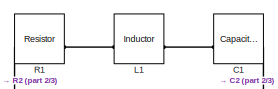
[diagram: root canvas - part 1/3, top center region]
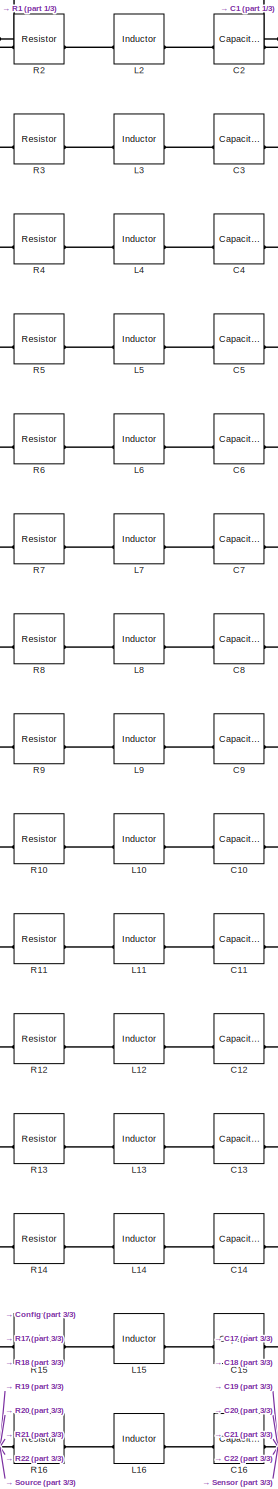
[diagram: root canvas - part 2/3, central region]
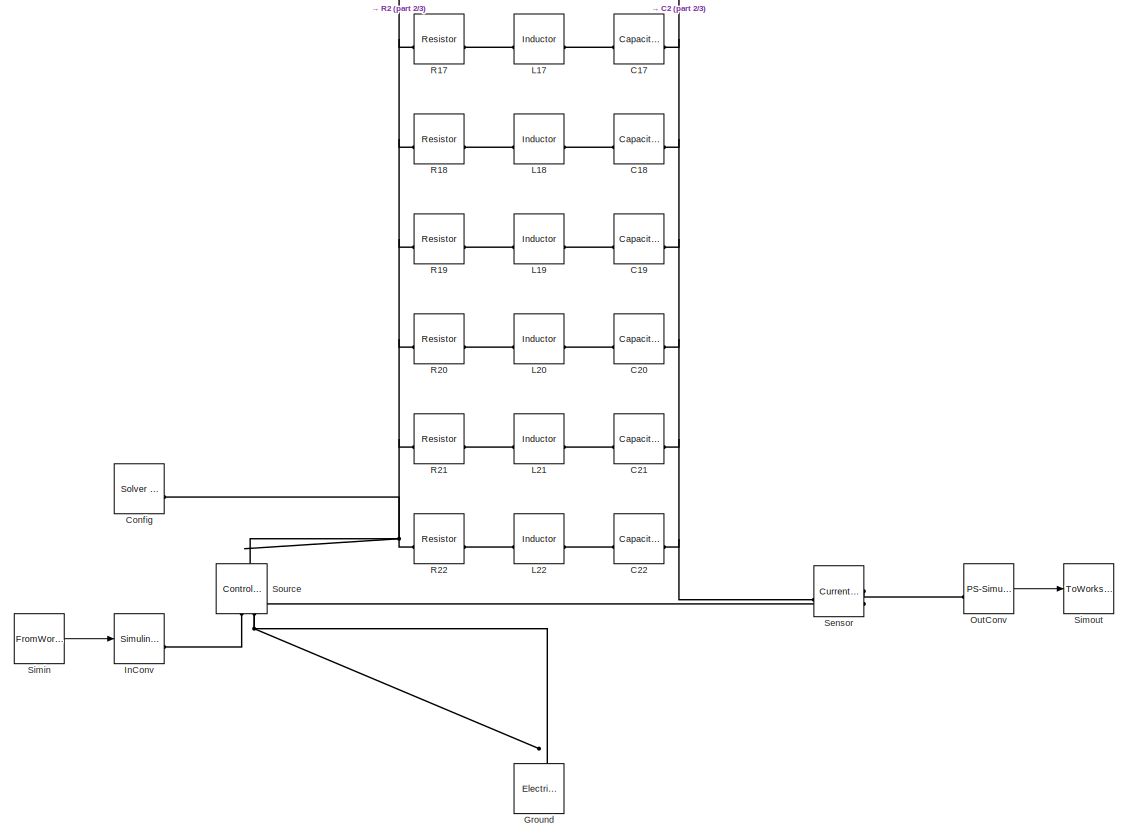
[diagram: root canvas - part 3/3, full width, bottom band]
MODEL slx_2de7c97d966d
KIND model
CONFIG AbsTol = auto
CONFIG EnableMultiTasking = off
CONFIG FixedStep = auto
CONFIG MaxStep = auto
CONFIG MinStep = auto
CONFIG RelTol = 1e-3
CONFIG SampleTimeConstraint = Unconstrained
CONFIG SolverName = VariableStepAuto
CONFIG StartTime = 0.0
CONFIG StopTime = 0.74999
BLOCK [Reference] C1  REF=fl_lib/Electrical/Electrical Elements/Capacitor
  AttributesFormatString = 2.8616e-06
  SourceBlock = fl_lib/Electrical/Electrical Elements/Capacitor
  SourceType = Capacitor
BLOCK [Reference] C10  REF=fl_lib/Electrical/Electrical Elements/Capacitor
  AttributesFormatString = 1.9689e-05
  SourceBlock = fl_lib/Electrical/Electrical Elements/Capacitor
  SourceType = Capacitor
BLOCK [Reference] C11  REF=fl_lib/Electrical/Electrical Elements/Capacitor
  AttributesFormatString = 5.026e-06
  SourceBlock = fl_lib/Electrical/Electrical Elements/Capacitor
  SourceType = Capacitor
BLOCK [Reference] C12  REF=fl_lib/Electrical/Electrical Elements/Capacitor
  AttributesFormatString = 7.6918e-06
  SourceBlock = fl_lib/Electrical/Electrical Elements/Capacitor
  SourceType = Capacitor
BLOCK [Reference] C13  REF=fl_lib/Electrical/Electrical Elements/Capacitor
  AttributesFormatString = 4.7083e-06
  SourceBlock = fl_lib/Electrical/Electrical Elements/Capacitor
  SourceType = Capacitor
BLOCK [Reference] C14  REF=fl_lib/Electrical/Electrical Elements/Capacitor
  AttributesFormatString = 3.0442e-06
  SourceBlock = fl_lib/Electrical/Electrical Elements/Capacitor
  SourceType = Capacitor
BLOCK [Reference] C15  REF=fl_lib/Electrical/Electrical Elements/Capacitor
  AttributesFormatString = 1.1755e-07
  SourceBlock = fl_lib/Electrical/Electrical Elements/Capacitor
  SourceType = Capacitor
BLOCK [Reference] C16  REF=fl_lib/Electrical/Electrical Elements/Capacitor
  AttributesFormatString = 3.9456e-07
  SourceBlock = fl_lib/Electrical/Electrical Elements/Capacitor
  SourceType = Capacitor
BLOCK [Reference] C17  REF=fl_lib/Electrical/Electrical Elements/Capacitor
  AttributesFormatString = 1.4808e-06
  SourceBlock = fl_lib/Electrical/Electrical Elements/Capacitor
  SourceType = Capacitor
BLOCK [Reference] C18  REF=fl_lib/Electrical/Electrical Elements/Capacitor
  AttributesFormatString = 1.4582e-06
  SourceBlock = fl_lib/Electrical/Electrical Elements/Capacitor
  SourceType = Capacitor
BLOCK [Reference] C19  REF=fl_lib/Electrical/Electrical Elements/Capacitor
  AttributesFormatString = 1.0889e-07
  SourceBlock = fl_lib/Electrical/Electrical Elements/Capacitor
  SourceType = Capacitor
BLOCK [Reference] C2  REF=fl_lib/Electrical/Electrical Elements/Capacitor
  AttributesFormatString = 2.9993e-07
  SourceBlock = fl_lib/Electrical/Electrical Elements/Capacitor
  SourceType = Capacitor
BLOCK [Reference] C20  REF=fl_lib/Electrical/Electrical Elements/Capacitor
  AttributesFormatString = 1.7867e-07
  SourceBlock = fl_lib/Electrical/Electrical Elements/Capacitor
  SourceType = Capacitor
BLOCK [Reference] C21  REF=fl_lib/Electrical/Electrical Elements/Capacitor
  AttributesFormatString = 6.2428e-07
  SourceBlock = fl_lib/Electrical/Electrical Elements/Capacitor
  SourceType = Capacitor
BLOCK [Reference] C22  REF=fl_lib/Electrical/Electrical Elements/Capacitor
  AttributesFormatString = 2.2206e-07
  SourceBlock = fl_lib/Electrical/Electrical Elements/Capacitor
  SourceType = Capacitor
BLOCK [Reference] C3  REF=fl_lib/Electrical/Electrical Elements/Capacitor
  AttributesFormatString = 1.2101e-06
  SourceBlock = fl_lib/Electrical/Electrical Elements/Capacitor
  SourceType = Capacitor
BLOCK [Reference] C4  REF=fl_lib/Electrical/Electrical Elements/Capacitor
  AttributesFormatString = 1.2229e-06
  SourceBlock = fl_lib/Electrical/Electrical Elements/Capacitor
  SourceType = Capacitor
BLOCK [Reference] C5  REF=fl_lib/Electrical/Electrical Elements/Capacitor
  AttributesFormatString = 3.4763e-07
  SourceBlock = fl_lib/Electrical/Electrical Elements/Capacitor
  SourceType = Capacitor
BLOCK [Reference] C6  REF=fl_lib/Electrical/Electrical Elements/Capacitor
  AttributesFormatString = 6.0459e-06
  SourceBlock = fl_lib/Electrical/Electrical Elements/Capacitor
  SourceType = Capacitor
BLOCK [Reference] C7  REF=fl_lib/Electrical/Electrical Elements/Capacitor
  AttributesFormatString = 1.3946e-06
  SourceBlock = fl_lib/Electrical/Electrical Elements/Capacitor
  SourceType = Capacitor
BLOCK [Reference] C8  REF=fl_lib/Electrical/Electrical Elements/Capacitor
  AttributesFormatString = 5.3015e-05
  SourceBlock = fl_lib/Electrical/Electrical Elements/Capacitor
  SourceType = Capacitor
BLOCK [Reference] C9  REF=fl_lib/Electrical/Electrical Elements/Capacitor
  AttributesFormatString = 1.3821e-07
  SourceBlock = fl_lib/Electrical/Electrical Elements/Capacitor
  SourceType = Capacitor
BLOCK [Reference] Config  REF=nesl_utility/Solver
Configuration
  SourceBlock = nesl_utility/Solver\nConfiguration
  SourceType = Solver\nConfiguration
BLOCK [Reference] Ground  REF=fl_lib/Electrical/Electrical Elements/Electrical Reference
  NameLocation = right
  SourceBlock = fl_lib/Electrical/Electrical Elements/Electrical Reference
  SourceType = Electrical Reference
BLOCK [Reference] InConv  REF=nesl_utility/Simulink-PS
Converter
  SourceBlock = nesl_utility/Simulink-PS\nConverter
  SourceType = Simulink-PS\nConverter
BLOCK [Reference] L1  REF=fl_lib/Electrical/Electrical Elements/Inductor
  AttributesFormatString = 0.00049706
  SourceBlock = fl_lib/Electrical/Electrical Elements/Inductor
  SourceType = Inductor
BLOCK [Reference] L10  REF=fl_lib/Electrical/Electrical Elements/Inductor
  AttributesFormatString = 0.0080408
  SourceBlock = fl_lib/Electrical/Electrical Elements/Inductor
  SourceType = Inductor
BLOCK [Reference] L11  REF=fl_lib/Electrical/Electrical Elements/Inductor
  AttributesFormatString = 0.034902
  SourceBlock = fl_lib/Electrical/Electrical Elements/Inductor
  SourceType = Inductor
BLOCK [Reference] L12  REF=fl_lib/Electrical/Electrical Elements/Inductor
  AttributesFormatString = 0.010316
  SourceBlock = fl_lib/Electrical/Electrical Elements/Inductor
  SourceType = Inductor
BLOCK [Reference] L13  REF=fl_lib/Electrical/Electrical Elements/Inductor
  AttributesFormatString = 0.011138
  SourceBlock = fl_lib/Electrical/Electrical Elements/Inductor
  SourceType = Inductor
BLOCK [Reference] L14  REF=fl_lib/Electrical/Electrical Elements/Inductor
  AttributesFormatString = 0.014597
  SourceBlock = fl_lib/Electrical/Electrical Elements/Inductor
  SourceType = Inductor
BLOCK [Reference] L15  REF=fl_lib/Electrical/Electrical Elements/Inductor
  AttributesFormatString = 0.24915
  SourceBlock = fl_lib/Electrical/Electrical Elements/Inductor
  SourceType = Inductor
BLOCK [Reference] L16  REF=fl_lib/Electrical/Electrical Elements/Inductor
  AttributesFormatString = 0.063562
  SourceBlock = fl_lib/Electrical/Electrical Elements/Inductor
  SourceType = Inductor
BLOCK [Reference] L17  REF=fl_lib/Electrical/Electrical Elements/Inductor
  AttributesFormatString = 0.014941
  SourceBlock = fl_lib/Electrical/Electrical Elements/Inductor
  SourceType = Inductor
BLOCK [Reference] L18  REF=fl_lib/Electrical/Electrical Elements/Inductor
  AttributesFormatString = 0.010358
  SourceBlock = fl_lib/Electrical/Electrical Elements/Inductor
  SourceType = Inductor
BLOCK [Reference] L19  REF=fl_lib/Electrical/Electrical Elements/Inductor
  AttributesFormatString = 0.11296
  SourceBlock = fl_lib/Electrical/Electrical Elements/Inductor
  SourceType = Inductor
BLOCK [Reference] L2  REF=fl_lib/Electrical/Electrical Elements/Inductor
  AttributesFormatString = 0.0024017
  SourceBlock = fl_lib/Electrical/Electrical Elements/Inductor
  SourceType = Inductor
BLOCK [Reference] L20  REF=fl_lib/Electrical/Electrical Elements/Inductor
  AttributesFormatString = 0.049934
  SourceBlock = fl_lib/Electrical/Electrical Elements/Inductor
  SourceType = Inductor
BLOCK [Reference] L21  REF=fl_lib/Electrical/Electrical Elements/Inductor
  AttributesFormatString = 0.0094693
  SourceBlock = fl_lib/Electrical/Electrical Elements/Inductor
  SourceType = Inductor
BLOCK [Reference] L22  REF=fl_lib/Electrical/Electrical Elements/Inductor
  AttributesFormatString = 0.0098968
  SourceBlock = fl_lib/Electrical/Electrical Elements/Inductor
  SourceType = Inductor
BLOCK [Reference] L3  REF=fl_lib/Electrical/Electrical Elements/Inductor
  AttributesFormatString = 0.0025861
  SourceBlock = fl_lib/Electrical/Electrical Elements/Inductor
  SourceType = Inductor
BLOCK [Reference] L4  REF=fl_lib/Electrical/Electrical Elements/Inductor
  AttributesFormatString = 0.0026139
  SourceBlock = fl_lib/Electrical/Electrical Elements/Inductor
  SourceType = Inductor
BLOCK [Reference] L5  REF=fl_lib/Electrical/Electrical Elements/Inductor
  AttributesFormatString = 0.0026487
  SourceBlock = fl_lib/Electrical/Electrical Elements/Inductor
  SourceType = Inductor
BLOCK [Reference] L6  REF=fl_lib/Electrical/Electrical Elements/Inductor
  AttributesFormatString = 0.0031406
  SourceBlock = fl_lib/Electrical/Electrical Elements/Inductor
  SourceType = Inductor
BLOCK [Reference] L7  REF=fl_lib/Electrical/Electrical Elements/Inductor
  AttributesFormatString = 0.00322
  SourceBlock = fl_lib/Electrical/Electrical Elements/Inductor
  SourceType = Inductor
BLOCK [Reference] L8  REF=fl_lib/Electrical/Electrical Elements/Inductor
  AttributesFormatString = 0.0043874
  SourceBlock = fl_lib/Electrical/Electrical Elements/Inductor
  SourceType = Inductor
BLOCK [Reference] L9  REF=fl_lib/Electrical/Electrical Elements/Inductor
  AttributesFormatString = 0.007201
  SourceBlock = fl_lib/Electrical/Electrical Elements/Inductor
  SourceType = Inductor
BLOCK [Reference] OutConv  REF=nesl_utility/PS-Simulink
Converter
  SourceBlock = nesl_utility/PS-Simulink\nConverter
  SourceType = PS-Simulink\nConverter
BLOCK [Reference] R1  REF=fl_lib/Electrical/Electrical Elements/Resistor
  AttributesFormatString = 0.015616
  SourceBlock = fl_lib/Electrical/Electrical Elements/Resistor
  SourceType = Resistor
BLOCK [Reference] R10  REF=fl_lib/Electrical/Electrical Elements/Resistor
  AttributesFormatString = 0.25377
  SourceBlock = fl_lib/Electrical/Electrical Elements/Resistor
  SourceType = Resistor
BLOCK [Reference] R11  REF=fl_lib/Electrical/Electrical Elements/Resistor
  AttributesFormatString = 1.1684
  SourceBlock = fl_lib/Electrical/Electrical Elements/Resistor
  SourceType = Resistor
BLOCK [Reference] R12  REF=fl_lib/Electrical/Electrical Elements/Resistor
  AttributesFormatString = 0.59115
  SourceBlock = fl_lib/Electrical/Electrical Elements/Resistor
  SourceType = Resistor
BLOCK [Reference] R13  REF=fl_lib/Electrical/Electrical Elements/Resistor
  AttributesFormatString = 0.38964
  SourceBlock = fl_lib/Electrical/Electrical Elements/Resistor
  SourceType = Resistor
BLOCK [Reference] R14  REF=fl_lib/Electrical/Electrical Elements/Resistor
  AttributesFormatString = 0.51309
  SourceBlock = fl_lib/Electrical/Electrical Elements/Resistor
  SourceType = Resistor
BLOCK [Reference] R15  REF=fl_lib/Electrical/Electrical Elements/Resistor
  AttributesFormatString = 7.8763
  SourceBlock = fl_lib/Electrical/Electrical Elements/Resistor
  SourceType = Resistor
BLOCK [Reference] R16  REF=fl_lib/Electrical/Electrical Elements/Resistor
  AttributesFormatString = 2.0148
  SourceBlock = fl_lib/Electrical/Electrical Elements/Resistor
  SourceType = Resistor
BLOCK [Reference] R17  REF=fl_lib/Electrical/Electrical Elements/Resistor
  AttributesFormatString = 0.4778
  SourceBlock = fl_lib/Electrical/Electrical Elements/Resistor
  SourceType = Resistor
BLOCK [Reference] R18  REF=fl_lib/Electrical/Electrical Elements/Resistor
  AttributesFormatString = 0.32855
  SourceBlock = fl_lib/Electrical/Electrical Elements/Resistor
  SourceType = Resistor
BLOCK [Reference] R19  REF=fl_lib/Electrical/Electrical Elements/Resistor
  AttributesFormatString = 3.6583
  SourceBlock = fl_lib/Electrical/Electrical Elements/Resistor
  SourceType = Resistor
BLOCK [Reference] R2  REF=fl_lib/Electrical/Electrical Elements/Resistor
  AttributesFormatString = 0.075457
  SourceBlock = fl_lib/Electrical/Electrical Elements/Resistor
  SourceType = Resistor
BLOCK [Reference] R20  REF=fl_lib/Electrical/Electrical Elements/Resistor
  AttributesFormatString = 3.1791
  SourceBlock = fl_lib/Electrical/Electrical Elements/Resistor
  SourceType = Resistor
BLOCK [Reference] R21  REF=fl_lib/Electrical/Electrical Elements/Resistor
  AttributesFormatString = 0.29828
  SourceBlock = fl_lib/Electrical/Electrical Elements/Resistor
  SourceType = Resistor
BLOCK [Reference] R22  REF=fl_lib/Electrical/Electrical Elements/Resistor
  AttributesFormatString = 0.31308
  SourceBlock = fl_lib/Electrical/Electrical Elements/Resistor
  SourceType = Resistor
BLOCK [Reference] R3  REF=fl_lib/Electrical/Electrical Elements/Resistor
  AttributesFormatString = 0.081711
  SourceBlock = fl_lib/Electrical/Electrical Elements/Resistor
  SourceType = Resistor
BLOCK [Reference] R4  REF=fl_lib/Electrical/Electrical Elements/Resistor
  AttributesFormatString = 0.082176
  SourceBlock = fl_lib/Electrical/Electrical Elements/Resistor
  SourceType = Resistor
BLOCK [Reference] R5  REF=fl_lib/Electrical/Electrical Elements/Resistor
  AttributesFormatString = 0.083498
  SourceBlock = fl_lib/Electrical/Electrical Elements/Resistor
  SourceType = Resistor
BLOCK [Reference] R6  REF=fl_lib/Electrical/Electrical Elements/Resistor
  AttributesFormatString = 0.098667
  SourceBlock = fl_lib/Electrical/Electrical Elements/Resistor
  SourceType = Resistor
BLOCK [Reference] R7  REF=fl_lib/Electrical/Electrical Elements/Resistor
  AttributesFormatString = 0.1015
  SourceBlock = fl_lib/Electrical/Electrical Elements/Resistor
  SourceType = Resistor
BLOCK [Reference] R8  REF=fl_lib/Electrical/Electrical Elements/Resistor
  AttributesFormatString = 0.13785
  SourceBlock = fl_lib/Electrical/Electrical Elements/Resistor
  SourceType = Resistor
BLOCK [Reference] R9  REF=fl_lib/Electrical/Electrical Elements/Resistor
  AttributesFormatString = 0.22649
  SourceBlock = fl_lib/Electrical/Electrical Elements/Resistor
  SourceType = Resistor
BLOCK [Reference] Sensor  REF=fl_lib/Electrical/Electrical Sensors/Current Sensor
  SourceBlock = fl_lib/Electrical/Electrical Sensors/Current Sensor
  SourceType = Current Sensor
BLOCK [FromWorkspace] Simin
  SampleTime = 1.0417e-05
  VariableName = simin
BLOCK [ToWorkspace] Simout
  FixptAsFi = on
  MaxDataPoints = inf
  SampleTime = -1
  SaveFormat = Structure With Time
  VariableName = simout
BLOCK [Reference] Source  REF=fl_lib/Electrical/Electrical Sources/Controlled Voltage
Source
  NameLocation = right
  SourceBlock = fl_lib/Electrical/Electrical Sources/Controlled Voltage\nSource
  SourceType = Controlled Voltage\nSource
LINE OutConv:1 -> Simout:1
LINE Simin:1 -> InConv:1
PLINE C10:LConn1 -- L10:RConn1
PNET net1: C10:RConn1 -- C11:RConn1 -- C12:RConn1 -- C13:RConn1 -- C14:RConn1 -- C15:RConn1 -- C16:RConn1 -- C17:RConn1 -- C18:RConn1 -- C19:RConn1 -- C1:RConn1 -- C20:RConn1 -- C21:RConn1 -- C22:RConn1 -- C2:RConn1 -- C3:RConn1 -- C4:RConn1 -- C5:RConn1 -- C6:RConn1 -- C7:RConn1 -- C8:RConn1 -- C9:RConn1 -- Sensor:LConn1
PLINE C11:LConn1 -- L11:RConn1
PLINE C12:LConn1 -- L12:RConn1
PLINE C13:LConn1 -- L13:RConn1
PLINE C14:LConn1 -- L14:RConn1
PLINE C15:LConn1 -- L15:RConn1
PLINE C16:LConn1 -- L16:RConn1
PLINE C17:LConn1 -- L17:RConn1
PLINE C18:LConn1 -- L18:RConn1
PLINE C19:LConn1 -- L19:RConn1
PLINE C1:LConn1 -- L1:RConn1
PLINE C20:LConn1 -- L20:RConn1
PLINE C21:LConn1 -- L21:RConn1
PLINE C22:LConn1 -- L22:RConn1
PLINE C2:LConn1 -- L2:RConn1
PLINE C3:LConn1 -- L3:RConn1
PLINE C4:LConn1 -- L4:RConn1
PLINE C5:LConn1 -- L5:RConn1
PLINE C6:LConn1 -- L6:RConn1
PLINE C7:LConn1 -- L7:RConn1
PLINE C8:LConn1 -- L8:RConn1
PLINE C9:LConn1 -- L9:RConn1
PNET net2: Config:RConn1 -- R10:LConn1 -- R11:LConn1 -- R12:LConn1 -- R13:LConn1 -- R14:LConn1 -- R15:LConn1 -- R16:LConn1 -- R17:LConn1 -- R18:LConn1 -- R19:LConn1 -- R1:LConn1 -- R20:LConn1 -- R21:LConn1 -- R22:LConn1 -- R2:LConn1 -- R3:LConn1 -- R4:LConn1 -- R5:LConn1 -- R6:LConn1 -- R7:LConn1 -- R8:LConn1 -- R9:LConn1 -- Source:LConn1
PNET net3: Ground:LConn1 -- Sensor:RConn2 -- Source:RConn2
PLINE InConv:RConn1 -- Source:RConn1
PLINE L10:LConn1 -- R10:RConn1
PLINE L11:LConn1 -- R11:RConn1
PLINE L12:LConn1 -- R12:RConn1
PLINE L13:LConn1 -- R13:RConn1
PLINE L14:LConn1 -- R14:RConn1
PLINE L15:LConn1 -- R15:RConn1
PLINE L16:LConn1 -- R16:RConn1
PLINE L17:LConn1 -- R17:RConn1
PLINE L18:LConn1 -- R18:RConn1
PLINE L19:LConn1 -- R19:RConn1
PLINE L1:LConn1 -- R1:RConn1
PLINE L20:LConn1 -- R20:RConn1
PLINE L21:LConn1 -- R21:RConn1
PLINE L22:LConn1 -- R22:RConn1
PLINE L2:LConn1 -- R2:RConn1
PLINE L3:LConn1 -- R3:RConn1
PLINE L4:LConn1 -- R4:RConn1
PLINE L5:LConn1 -- R5:RConn1
PLINE L6:LConn1 -- R6:RConn1
PLINE L7:LConn1 -- R7:RConn1
PLINE L8:LConn1 -- R8:RConn1
PLINE L9:LConn1 -- R9:RConn1
PLINE OutConv:LConn1 -- Sensor:RConn1
note: PNET lines group multi-terminal physical nets as a canonical sorted terminal list (undirected conserving connections); 2-terminal nets keep the pairwise PLINE form
